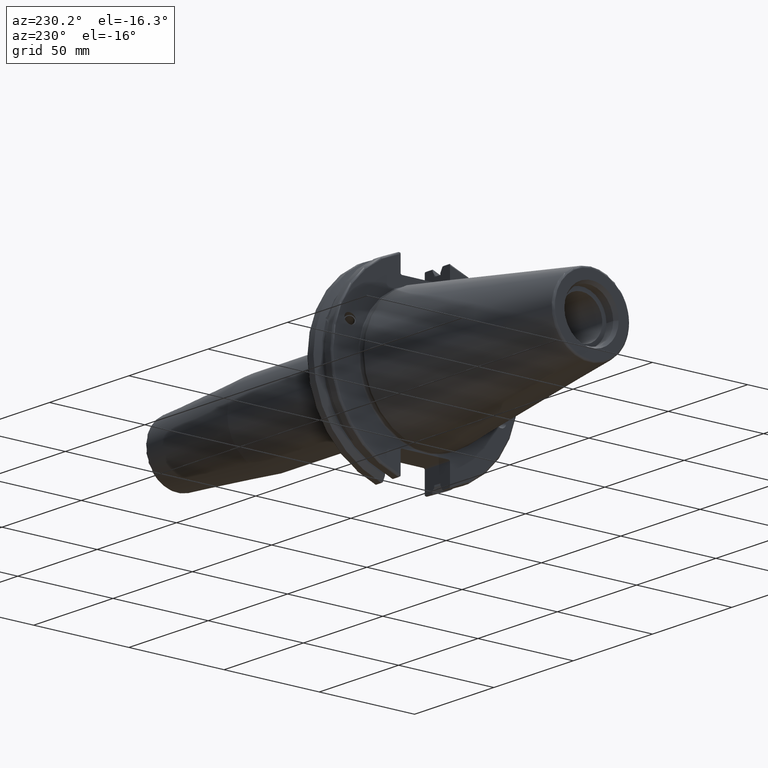
[diagram: clean part render]
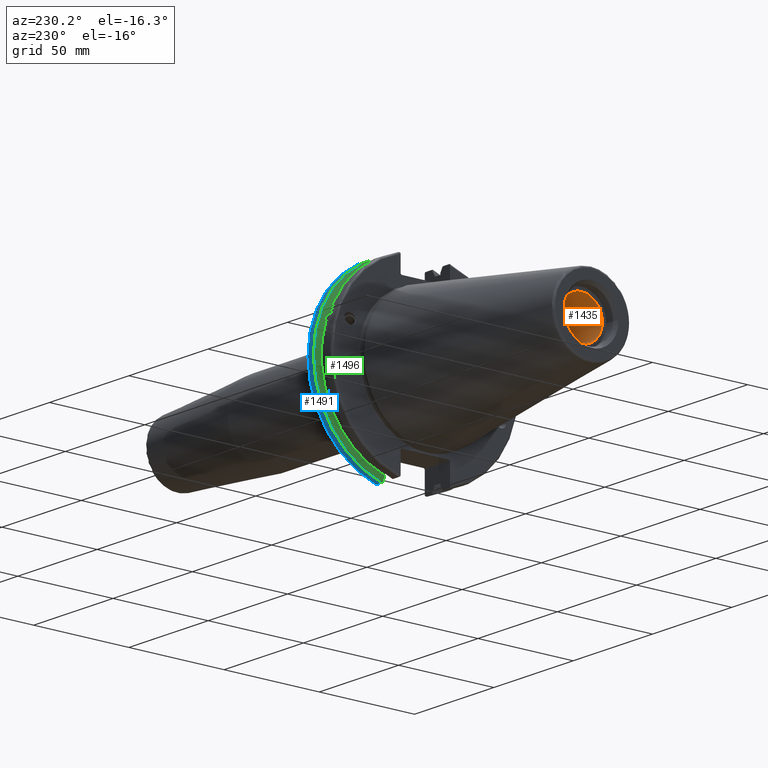
[diagram: same view with three faces highlighted in distinct colors, each labeled with its STEP entity id]
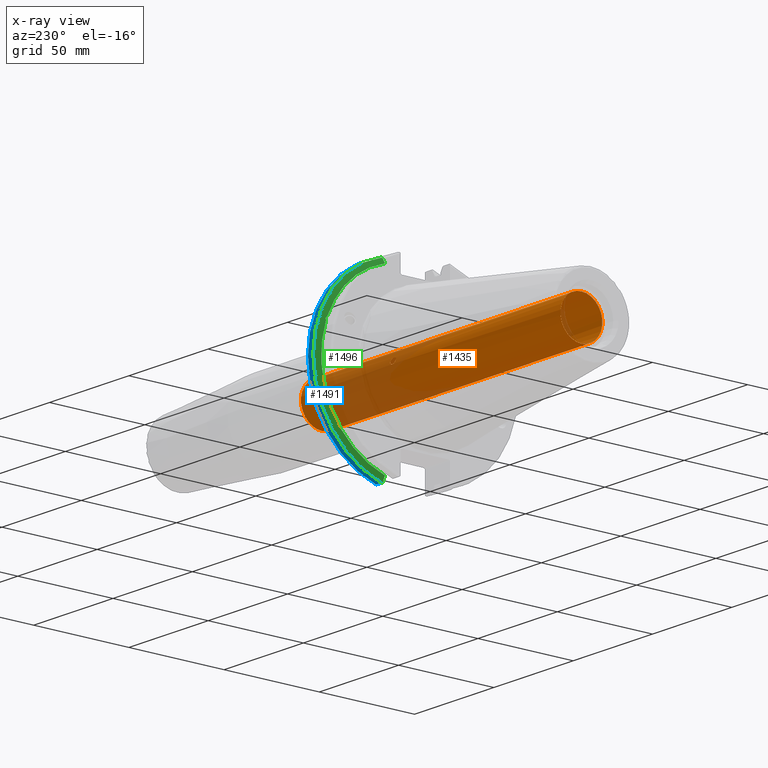
[diagram: x-ray of the same camera — body ghosted, the three highlighted faces saturated]
A machine part, auxiliary view with three faces highlighted in distinct colors.
The next image is the same camera in x-ray (body ghosted, the three faces saturated) — at least one of them is partly hidden behind the body in this view.
Their STEP definitions:

[orange] entity #1435 — the highlighted cylindrical surface (bore or boss wall) has radius 10.9855 mm, axis along (-1, 0, 0).
#33=B_SPLINE_CURVE_WITH_KNOTS('',3,(#2183,#2184,#2185,#2186,#2187,#2188,
#2189,#2190,#2191,#2192,#2193,#2194,#2195,#2196,#2197,#2198,#2199,#2200,
#2201,#2202,#2203,#2204,#2205,#2206,#2207,#2208),.UNSPECIFIED.,.F.,.F.,
(4,2,2,2,2,2,2,2,2,2,2,2,4),(0.,0.0611574273332739,0.122314854666548,0.183471284102352,
0.244627713538156,0.30578414297396,0.366940572409764,0.428097999743038,
0.489255427076312,0.550412854409586,0.61157028174286,0.672726711178664,
0.733883140614469),.UNSPECIFIED.);
#34=B_SPLINE_CURVE_WITH_KNOTS('',3,(#2209,#2210,#2211,#2212,#2213,#2214,
#2215,#2216,#2217,#2218),.UNSPECIFIED.,.F.,.F.,(4,2,2,2,4),(0.733883140614469,
0.795039570050273,0.856195999486077,0.917353426819351,0.978510854152625),
 .UNSPECIFIED.);
#35=B_SPLINE_CURVE_WITH_KNOTS('',3,(#2221,#2222,#2223,#2224,#2225,#2226,
#2227,#2228,#2229,#2230,#2231,#2232,#2233,#2234,#2235,#2236,#2237,#2238,
#2239,#2240,#2241,#2242,#2243,#2244,#2245,#2246),.UNSPECIFIED.,.F.,.F.,
(4,2,2,2,2,2,2,2,2,2,2,2,4),(0.,0.0611574273332739,0.122314854666548,0.183471284102352,
0.244627713538156,0.30578414297396,0.366940572409764,0.428097999743038,
0.489255427076312,0.550412854409586,0.61157028174286,0.672726711178664,
0.733883140614468),.UNSPECIFIED.);
#36=B_SPLINE_CURVE_WITH_KNOTS('',3,(#2247,#2248,#2249,#2250,#2251,#2252,
#2253,#2254,#2255,#2256),.UNSPECIFIED.,.F.,.F.,(4,2,2,2,4),(0.733883140614468,
0.795039570050273,0.856195999486077,0.917353426819351,0.978510854152625),
 .UNSPECIFIED.);
#98=LINE('',#2180,#188);
#188=VECTOR('',#1773,10.9855);
#266=CYLINDRICAL_SURFACE('',#1562,10.9855);
#291=FACE_BOUND('',#443,.T.);
#292=FACE_BOUND('',#444,.T.);
#356=FACE_OUTER_BOUND('',#442,.T.);
#442=EDGE_LOOP('',(#1031,#1032,#1033,#1034));
#443=EDGE_LOOP('',(#1035,#1036));
#444=EDGE_LOOP('',(#1037,#1038));
#553=CIRCLE('',#1561,10.9855);
#554=CIRCLE('',#1563,10.9855);
#634=VERTEX_POINT('',#2174);
#635=VERTEX_POINT('',#2178);
#636=VERTEX_POINT('',#2181);
#637=VERTEX_POINT('',#2182);
#638=VERTEX_POINT('',#2219);
#639=VERTEX_POINT('',#2220);
#789=EDGE_CURVE('',#634,#634,#553,.T.);
#791=EDGE_CURVE('',#635,#635,#554,.T.);
#792=EDGE_CURVE('',#635,#634,#98,.T.);
#793=EDGE_CURVE('',#636,#637,#33,.T.);
#794=EDGE_CURVE('',#637,#636,#34,.T.);
#795=EDGE_CURVE('',#638,#639,#35,.T.);
#796=EDGE_CURVE('',#639,#638,#36,.T.);
#1031=ORIENTED_EDGE('',*,*,#791,.F.);
#1032=ORIENTED_EDGE('',*,*,#792,.T.);
#1033=ORIENTED_EDGE('',*,*,#789,.F.);
#1034=ORIENTED_EDGE('',*,*,#792,.F.);
#1035=ORIENTED_EDGE('',*,*,#793,.F.);
#1036=ORIENTED_EDGE('',*,*,#794,.F.);
#1037=ORIENTED_EDGE('',*,*,#795,.F.);
#1038=ORIENTED_EDGE('',*,*,#796,.F.);
#1435=ADVANCED_FACE('',(#356,#291,#292),#266,.F.);
#1561=AXIS2_PLACEMENT_3D('',#2175,#1766,#1767);
#1562=AXIS2_PLACEMENT_3D('',#2177,#1769,#1770);
#1563=AXIS2_PLACEMENT_3D('',#2179,#1771,#1772);
#1766=DIRECTION('center_axis',(-1.,0.,0.));
#1767=DIRECTION('ref_axis',(0.,0.,1.));
#1769=DIRECTION('center_axis',(-1.,0.,0.));
#1770=DIRECTION('ref_axis',(0.,0.,1.));
#1771=DIRECTION('center_axis',(1.,0.,0.));
#1772=DIRECTION('ref_axis',(0.,0.,1.));
#1773=DIRECTION('',(1.,0.,0.));
#2174=CARTESIAN_POINT('',(68.4,-1.34533574120332E-15,-10.9855));
#2175=CARTESIAN_POINT('Origin',(68.4,0.,0.));
#2177=CARTESIAN_POINT('Origin',(-16.6,0.,0.));
#2178=CARTESIAN_POINT('',(-95.25,1.34533574120333E-15,-10.9855));
#2179=CARTESIAN_POINT('Origin',(-95.25,0.,0.));
#2180=CARTESIAN_POINT('',(-16.6,-1.34533574120333E-15,-10.9855));
#2181=CARTESIAN_POINT('',(11.1341,-10.7644060814244,-2.19289123400911));
#2182=CARTESIAN_POINT('',(9.5131,-10.3229932856436,-3.75726228450413));
#2183=CARTESIAN_POINT('Ctrl Pts',(11.1341,-10.7644060814244,-2.19289123400911));
#2184=CARTESIAN_POINT('Ctrl Pts',(11.3379580911109,-10.7644060814244,-2.19289123400911));
#2185=CARTESIAN_POINT('Ctrl Pts',(11.5551976425658,-10.7563992112981,-2.23339769026782));
#2186=CARTESIAN_POINT('Ctrl Pts',(11.9544884896352,-10.7211890589831,-2.39672575217716));
#2187=CARTESIAN_POINT('Ctrl Pts',(12.1365656702174,-10.6936730645534,-2.51941648519806));
#2188=CARTESIAN_POINT('Ctrl Pts',(12.4240721687679,-10.6236838882786,-2.79990053351312));
#2189=CARTESIAN_POINT('Ctrl Pts',(12.5487766094346,-10.5764720644486,-2.97648040123253));
#2190=CARTESIAN_POINT('Ctrl Pts',(12.7142987049788,-10.4611409987277,-3.35942344936975));
#2191=CARTESIAN_POINT('Ctrl Pts',(12.7551,-10.3927157215133,-3.56570146632267));
#2192=CARTESIAN_POINT('Ctrl Pts',(12.7551,-10.2532708497739,-3.9488231026856));
#2193=CARTESIAN_POINT('Ctrl Pts',(12.7142987049788,-10.1730946997047,-4.15082415169272));
#2194=CARTESIAN_POINT('Ctrl Pts',(12.5487766094346,-10.015292375161,-4.51830892580662));
#2195=CARTESIAN_POINT('Ctrl Pts',(12.4240721687679,-9.93795537936544,-4.68392412762843));
#2196=CARTESIAN_POINT('Ctrl Pts',(12.1365656702174,-9.81127852795753,-4.94377554954527));
#2197=CARTESIAN_POINT('Ctrl Pts',(11.9544884896352,-9.75349291957811,-5.05544904408574));
#2198=CARTESIAN_POINT('Ctrl Pts',(11.5551976425658,-9.67548020659099,-5.20319824796008));
#2199=CARTESIAN_POINT('Ctrl Pts',(11.3379580911109,-9.65557677676255,-5.23937471059702));
#2200=CARTESIAN_POINT('Ctrl Pts',(10.9302419088891,-9.65557677676255,-5.23937471059702));
#2201=CARTESIAN_POINT('Ctrl Pts',(10.7130023574342,-9.67548020659099,-5.20319824796008));
#2202=CARTESIAN_POINT('Ctrl Pts',(10.3137115103648,-9.75349291957811,-5.05544904408574));
#2203=CARTESIAN_POINT('Ctrl Pts',(10.1316343297826,-9.81127852795753,-4.94377554954527));
#2204=CARTESIAN_POINT('Ctrl Pts',(9.84412783123206,-9.93795537936544,-4.68392412762843));
#2205=CARTESIAN_POINT('Ctrl Pts',(9.71942339056537,-10.015292375161,-4.51830892580662));
#2206=CARTESIAN_POINT('Ctrl Pts',(9.55390129502121,-10.1730946997047,-4.15082415169272));
#2207=CARTESIAN_POINT('Ctrl Pts',(9.5131,-10.2532708497739,-3.9488231026856));
#2208=CARTESIAN_POINT('Ctrl Pts',(9.5131,-10.3229932856436,-3.75726228450413));
#2209=CARTESIAN_POINT('Ctrl Pts',(9.5131,-10.3229932856436,-3.75726228450413));
#2210=CARTESIAN_POINT('Ctrl Pts',(9.5131,-10.3927157215133,-3.56570146632267));
#2211=CARTESIAN_POINT('Ctrl Pts',(9.55390129502121,-10.4611409987277,-3.35942344936976));
#2212=CARTESIAN_POINT('Ctrl Pts',(9.71942339056537,-10.5764720644486,-2.97648040123254));
#2213=CARTESIAN_POINT('Ctrl Pts',(9.84412783123205,-10.6236838882786,-2.79990053351313));
#2214=CARTESIAN_POINT('Ctrl Pts',(10.1316343297826,-10.6936730645534,-2.51941648519806));
#2215=CARTESIAN_POINT('Ctrl Pts',(10.3137115103648,-10.7211890589831,-2.39672575217717));
#2216=CARTESIAN_POINT('Ctrl Pts',(10.7130023574342,-10.7563992112981,-2.23339769026782));
#2217=CARTESIAN_POINT('Ctrl Pts',(10.9302419088891,-10.7644060814244,-2.19289123400911));
#2218=CARTESIAN_POINT('Ctrl Pts',(11.1341,-10.7644060814244,-2.19289123400911));
#2219=CARTESIAN_POINT('',(11.1341,10.7644060814244,2.19289123400911));
#2220=CARTESIAN_POINT('',(9.5131,10.3229932856436,3.75726228450413));
#2221=CARTESIAN_POINT('Ctrl Pts',(11.1341,10.7644060814244,2.19289123400911));
#2222=CARTESIAN_POINT('Ctrl Pts',(11.3379580911109,10.7644060814244,2.19289123400911));
#2223=CARTESIAN_POINT('Ctrl Pts',(11.5551976425658,10.7563992112981,2.23339769026782));
#2224=CARTESIAN_POINT('Ctrl Pts',(11.9544884896352,10.7211890589831,2.39672575217716));
#2225=CARTESIAN_POINT('Ctrl Pts',(12.1365656702174,10.6936730645534,2.51941648519806));
#2226=CARTESIAN_POINT('Ctrl Pts',(12.4240721687679,10.6236838882786,2.79990053351312));
#2227=CARTESIAN_POINT('Ctrl Pts',(12.5487766094346,10.5764720644486,2.97648040123253));
#2228=CARTESIAN_POINT('Ctrl Pts',(12.7142987049788,10.4611409987277,3.35942344936975));
#2229=CARTESIAN_POINT('Ctrl Pts',(12.7551,10.3927157215133,3.56570146632267));
#2230=CARTESIAN_POINT('Ctrl Pts',(12.7551,10.2532708497739,3.9488231026856));
#2231=CARTESIAN_POINT('Ctrl Pts',(12.7142987049788,10.1730946997047,4.15082415169272));
#2232=CARTESIAN_POINT('Ctrl Pts',(12.5487766094346,10.015292375161,4.51830892580662));
#2233=CARTESIAN_POINT('Ctrl Pts',(12.4240721687679,9.93795537936544,4.68392412762843));
#2234=CARTESIAN_POINT('Ctrl Pts',(12.1365656702174,9.81127852795753,4.94377554954527));
#2235=CARTESIAN_POINT('Ctrl Pts',(11.9544884896352,9.75349291957811,5.05544904408574));
#2236=CARTESIAN_POINT('Ctrl Pts',(11.5551976425658,9.67548020659099,5.20319824796008));
#2237=CARTESIAN_POINT('Ctrl Pts',(11.3379580911109,9.65557677676255,5.23937471059702));
#2238=CARTESIAN_POINT('Ctrl Pts',(10.9302419088891,9.65557677676255,5.23937471059702));
#2239=CARTESIAN_POINT('Ctrl Pts',(10.7130023574342,9.67548020659099,5.20319824796008));
#2240=CARTESIAN_POINT('Ctrl Pts',(10.3137115103648,9.75349291957811,5.05544904408574));
#2241=CARTESIAN_POINT('Ctrl Pts',(10.1316343297826,9.81127852795753,4.94377554954527));
#2242=CARTESIAN_POINT('Ctrl Pts',(9.84412783123206,9.93795537936544,4.68392412762843));
#2243=CARTESIAN_POINT('Ctrl Pts',(9.71942339056537,10.015292375161,4.51830892580662));
#2244=CARTESIAN_POINT('Ctrl Pts',(9.55390129502121,10.1730946997047,4.15082415169272));
#2245=CARTESIAN_POINT('Ctrl Pts',(9.5131,10.2532708497739,3.9488231026856));
#2246=CARTESIAN_POINT('Ctrl Pts',(9.5131,10.3229932856436,3.75726228450413));
#2247=CARTESIAN_POINT('Ctrl Pts',(9.5131,10.3229932856436,3.75726228450413));
#2248=CARTESIAN_POINT('Ctrl Pts',(9.5131,10.3927157215133,3.56570146632267));
#2249=CARTESIAN_POINT('Ctrl Pts',(9.55390129502121,10.4611409987277,3.35942344936976));
#2250=CARTESIAN_POINT('Ctrl Pts',(9.71942339056537,10.5764720644486,2.97648040123254));
#2251=CARTESIAN_POINT('Ctrl Pts',(9.84412783123206,10.6236838882786,2.79990053351313));
#2252=CARTESIAN_POINT('Ctrl Pts',(10.1316343297826,10.6936730645534,2.51941648519806));
#2253=CARTESIAN_POINT('Ctrl Pts',(10.3137115103648,10.7211890589831,2.39672575217717));
#2254=CARTESIAN_POINT('Ctrl Pts',(10.7130023574342,10.7563992112981,2.23339769026783));
#2255=CARTESIAN_POINT('Ctrl Pts',(10.9302419088891,10.7644060814244,2.19289123400911));
#2256=CARTESIAN_POINT('Ctrl Pts',(11.1341,10.7644060814244,2.19289123400911));

[blue] entity #1491 — the highlighted cylindrical surface (partial cylindrical patch) has radius 49.2125 mm, axis along (1, 0, 0).
#138=LINE('',#2793,#228);
#166=LINE('',#2985,#256);
#228=VECTOR('',#1945,10.);
#256=VECTOR('',#2039,10.);
#283=CYLINDRICAL_SURFACE('',#1663,49.2125);
#412=FACE_OUTER_BOUND('',#514,.T.);
#514=EDGE_LOOP('',(#1337,#1338,#1339,#1340));
#586=CIRCLE('',#1628,49.2125);
#597=CIRCLE('',#1664,49.2125);
#718=VERTEX_POINT('',#2767);
#719=VERTEX_POINT('',#2776);
#721=VERTEX_POINT('',#2789);
#750=VERTEX_POINT('',#2984);
#897=EDGE_CURVE('',#718,#719,#586,.T.);
#901=EDGE_CURVE('',#721,#718,#138,.T.);
#957=EDGE_CURVE('',#719,#750,#166,.T.);
#959=EDGE_CURVE('',#721,#750,#597,.T.);
#1337=ORIENTED_EDGE('',*,*,#897,.F.);
#1338=ORIENTED_EDGE('',*,*,#901,.F.);
#1339=ORIENTED_EDGE('',*,*,#959,.T.);
#1340=ORIENTED_EDGE('',*,*,#957,.F.);
#1491=ADVANCED_FACE('',(#412),#283,.T.);
#1628=AXIS2_PLACEMENT_3D('',#2777,#1940,#1941);
#1663=AXIS2_PLACEMENT_3D('',#2989,#2040,#2041);
#1664=AXIS2_PLACEMENT_3D('',#2990,#2042,#2043);
#1940=DIRECTION('center_axis',(1.,0.,0.));
#1941=DIRECTION('ref_axis',(0.,1.,-6.12323399573677E-17));
#1945=DIRECTION('',(1.,0.,0.));
#2039=DIRECTION('',(-1.,0.,0.));
#2040=DIRECTION('center_axis',(1.,0.,0.));
#2041=DIRECTION('ref_axis',(0.,1.,0.));
#2042=DIRECTION('center_axis',(1.,0.,0.));
#2043=DIRECTION('ref_axis',(0.,0.,-1.));
#2767=CARTESIAN_POINT('',(18.05,13.4317035994433,-47.3440544806494));
#2776=CARTESIAN_POINT('',(18.05,13.4317035994433,47.3440544806494));
#2777=CARTESIAN_POINT('Origin',(18.05,0.,0.));
#2789=CARTESIAN_POINT('',(14.6602090340487,13.4317035994433,-47.3440544806494));
#2793=CARTESIAN_POINT('',(16.8551045170244,13.4317035994433,-47.3440544806494));
#2984=CARTESIAN_POINT('',(14.6602090340487,13.4317035994433,47.3440544806494));
#2985=CARTESIAN_POINT('',(16.8551045170244,13.4317035994433,47.3440544806494));
#2989=CARTESIAN_POINT('Origin',(16.8551045170244,0.,0.));
#2990=CARTESIAN_POINT('Origin',(14.6602090340487,0.,0.));

[green] entity #1496 — the highlighted conical surface has half-angle 60 deg.
#23=(
BOUNDED_CURVE()
B_SPLINE_CURVE(2,(#2790,#2791,#2792),.UNSPECIFIED.,.F.,.F.)
B_SPLINE_CURVE_WITH_KNOTS((3,3),(0.325260944932521,0.390084992222202),
 .UNSPECIFIED.)
CURVE()
GEOMETRIC_REPRESENTATION_ITEM()
RATIONAL_B_SPLINE_CURVE((1.00019140645994,1.00011477674864,1.))
REPRESENTATION_ITEM('')
);
#24=(
BOUNDED_CURVE()
B_SPLINE_CURVE(2,(#2804,#2805,#2806),.UNSPECIFIED.,.F.,.F.)
B_SPLINE_CURVE_WITH_KNOTS((3,3),(0.0558332664532001,0.331657177124504),
 .UNSPECIFIED.)
CURVE()
GEOMETRIC_REPRESENTATION_ITEM()
RATIONAL_B_SPLINE_CURVE((1.00012873636632,1.00038235574022,1.))
REPRESENTATION_ITEM('')
);
#29=(
BOUNDED_CURVE()
B_SPLINE_CURVE(2,(#2969,#2970,#2971),.UNSPECIFIED.,.F.,.F.)
B_SPLINE_CURVE_WITH_KNOTS((3,3),(0.,0.275823910671402),.UNSPECIFIED.)
CURVE()
GEOMETRIC_REPRESENTATION_ITEM()
RATIONAL_B_SPLINE_CURVE((1.,1.00038235574129,1.00012873636668))
REPRESENTATION_ITEM('')
);
#30=(
BOUNDED_CURVE()
B_SPLINE_CURVE(2,(#2986,#2987,#2988),.UNSPECIFIED.,.F.,.F.)
B_SPLINE_CURVE_WITH_KNOTS((3,3),(0.,0.0648240472897064),.UNSPECIFIED.)
CURVE()
GEOMETRIC_REPRESENTATION_ITEM()
RATIONAL_B_SPLINE_CURVE((1.,1.00011477674844,1.00019140645961))
REPRESENTATION_ITEM('')
);
#50=B_SPLINE_CURVE_WITH_KNOTS('',3,(#2594,#2595,#2596,#2597,#2598,#2599,
#2600,#2601),.UNSPECIFIED.,.F.,.F.,(4,2,2,4),(0.426712868358719,0.441644498666905,
0.480313313223129,0.518982127779353),.UNSPECIFIED.);
#54=B_SPLINE_CURVE_WITH_KNOTS('',3,(#2656,#2657,#2658,#2659,#2660,#2661,
#2662,#2663),.UNSPECIFIED.,.F.,.F.,(4,2,2,4),(0.518982127779353,0.557650942335576,
0.5963197568918,0.611251387199989),.UNSPECIFIED.);
#79=CONICAL_SURFACE('',#1671,47.8172386482472,1.0471975511966);
#417=FACE_OUTER_BOUND('',#519,.T.);
#519=EDGE_LOOP('',(#1356,#1357,#1358,#1359,#1360,#1361,#1362,#1363,#1364));
#575=CIRCLE('',#1608,46.4219772964944);
#597=CIRCLE('',#1664,49.2125);
#600=CIRCLE('',#1672,46.4219772964944);
#677=VERTEX_POINT('',#2591);
#678=VERTEX_POINT('',#2593);
#685=VERTEX_POINT('',#2654);
#694=VERTEX_POINT('',#2696);
#720=VERTEX_POINT('',#2787);
#721=VERTEX_POINT('',#2789);
#746=VERTEX_POINT('',#2966);
#747=VERTEX_POINT('',#2968);
#750=VERTEX_POINT('',#2984);
#847=EDGE_CURVE('',#678,#677,#50,.T.);
#855=EDGE_CURVE('',#677,#685,#54,.T.);
#867=EDGE_CURVE('',#694,#678,#575,.T.);
#900=EDGE_CURVE('',#720,#721,#23,.T.);
#905=EDGE_CURVE('',#720,#694,#24,.T.);
#950=EDGE_CURVE('',#747,#746,#29,.T.);
#958=EDGE_CURVE('',#750,#746,#30,.T.);
#959=EDGE_CURVE('',#721,#750,#597,.T.);
#965=EDGE_CURVE('',#685,#747,#600,.T.);
#1356=ORIENTED_EDGE('',*,*,#847,.T.);
#1357=ORIENTED_EDGE('',*,*,#855,.T.);
#1358=ORIENTED_EDGE('',*,*,#965,.T.);
#1359=ORIENTED_EDGE('',*,*,#950,.T.);
#1360=ORIENTED_EDGE('',*,*,#958,.F.);
#1361=ORIENTED_EDGE('',*,*,#959,.F.);
#1362=ORIENTED_EDGE('',*,*,#900,.F.);
#1363=ORIENTED_EDGE('',*,*,#905,.T.);
#1364=ORIENTED_EDGE('',*,*,#867,.T.);
#1496=ADVANCED_FACE('',(#417),#79,.T.);
#1608=AXIS2_PLACEMENT_3D('',#2697,#1885,#1886);
#1664=AXIS2_PLACEMENT_3D('',#2990,#2042,#2043);
#1671=AXIS2_PLACEMENT_3D('',#3003,#2059,#2060);
#1672=AXIS2_PLACEMENT_3D('',#3004,#2061,#2062);
#1885=DIRECTION('center_axis',(1.,0.,0.));
#1886=DIRECTION('ref_axis',(0.,0.,-1.));
#2042=DIRECTION('center_axis',(1.,0.,0.));
#2043=DIRECTION('ref_axis',(0.,0.,-1.));
#2059=DIRECTION('center_axis',(1.,0.,0.));
#2060=DIRECTION('ref_axis',(0.,1.,0.));
#2061=DIRECTION('center_axis',(1.,0.,0.));
#2062=DIRECTION('ref_axis',(0.,0.,-1.));
#2591=CARTESIAN_POINT('',(13.2341,43.923494649906,15.9868446375166));
#2593=CARTESIAN_POINT('',(13.0491,43.9096390749305,15.0646464421033));
#2594=CARTESIAN_POINT('Ctrl Pts',(13.0491,43.9096390749305,15.0646464421033));
#2595=CARTESIAN_POINT('Ctrl Pts',(13.0660815609661,43.9250360001461,15.1104047527575));
#2596=CARTESIAN_POINT('Ctrl Pts',(13.0821132459668,43.9385582852181,15.1564111356409));
#2597=CARTESIAN_POINT('Ctrl Pts',(13.1358132615496,43.9797830409459,15.3217566390709));
#2598=CARTESIAN_POINT('Ctrl Pts',(13.1719838933644,43.9989016655819,15.4570249042868));
#2599=CARTESIAN_POINT('Ctrl Pts',(13.2212913174802,43.9931221605126,15.7289849146254));
#2600=CARTESIAN_POINT('Ctrl Pts',(13.2341,43.9675796948952,15.8657219718732));
#2601=CARTESIAN_POINT('Ctrl Pts',(13.2341,43.923494649906,15.9868446375166));
#2654=CARTESIAN_POINT('',(13.0491,43.3201030900029,16.684383248648));
#2656=CARTESIAN_POINT('Ctrl Pts',(13.2341,43.923494649906,15.9868446375166));
#2657=CARTESIAN_POINT('Ctrl Pts',(13.2341,43.8794096049169,16.10796730316));
#2658=CARTESIAN_POINT('Ctrl Pts',(13.2212913174802,43.8110833825827,16.2291323464527));
#2659=CARTESIAN_POINT('Ctrl Pts',(13.1719838933644,43.6406982153492,16.441180795372));
#2660=CARTESIAN_POINT('Ctrl Pts',(13.1358132615496,43.5391037343221,16.5325130832406));
#2661=CARTESIAN_POINT('Ctrl Pts',(13.0821132459668,43.4012416983557,16.6326763251437));
#2662=CARTESIAN_POINT('Ctrl Pts',(13.0660815609661,43.3613106941341,16.6592273018006));
#2663=CARTESIAN_POINT('Ctrl Pts',(13.0491,43.3201030900029,16.684383248648));
#2696=CARTESIAN_POINT('',(13.0491,12.95,-44.5791147973605));
#2697=CARTESIAN_POINT('Origin',(13.0491,0.,0.));
#2787=CARTESIAN_POINT('',(14.3818103943757,12.95,-46.9780755322918));
#2789=CARTESIAN_POINT('',(14.6602090340487,13.4317035994433,-47.3440544806494));
#2790=CARTESIAN_POINT('Ctrl Pts',(14.3818103943757,12.95,-46.9780755322918));
#2791=CARTESIAN_POINT('Ctrl Pts',(14.5199310333617,13.1896660169965,-47.1601640966264));
#2792=CARTESIAN_POINT('Ctrl Pts',(14.6602090340487,13.4317035994433,-47.3440544806494));
#2804=CARTESIAN_POINT('Ctrl Pts',(14.3818103943757,12.95,-46.9780755322918));
#2805=CARTESIAN_POINT('Ctrl Pts',(13.6979955094851,12.95,-45.7494966802933));
#2806=CARTESIAN_POINT('Ctrl Pts',(13.0491,12.95,-44.5791147973604));
#2966=CARTESIAN_POINT('',(14.3818103943757,12.95,46.9780755322918));
#2968=CARTESIAN_POINT('',(13.0491,12.95,44.5791147973604));
#2969=CARTESIAN_POINT('Ctrl Pts',(13.0491,12.95,44.5791147973604));
#2970=CARTESIAN_POINT('Ctrl Pts',(13.6979955094846,12.95,45.7494966802924));
#2971=CARTESIAN_POINT('Ctrl Pts',(14.3818103943757,12.95,46.9780755322918));
#2984=CARTESIAN_POINT('',(14.6602090340487,13.4317035994433,47.3440544806494));
#2986=CARTESIAN_POINT('Ctrl Pts',(14.6602090340487,13.4317035994433,47.3440544806494));
#2987=CARTESIAN_POINT('Ctrl Pts',(14.5199310333618,13.1896660169966,47.1601640966264));
#2988=CARTESIAN_POINT('Ctrl Pts',(14.3818103943757,12.95,46.9780755322918));
#2990=CARTESIAN_POINT('Origin',(14.6602090340487,0.,0.));
#3003=CARTESIAN_POINT('Origin',(13.8546545170244,0.,0.));
#3004=CARTESIAN_POINT('Origin',(13.0491,0.,0.));